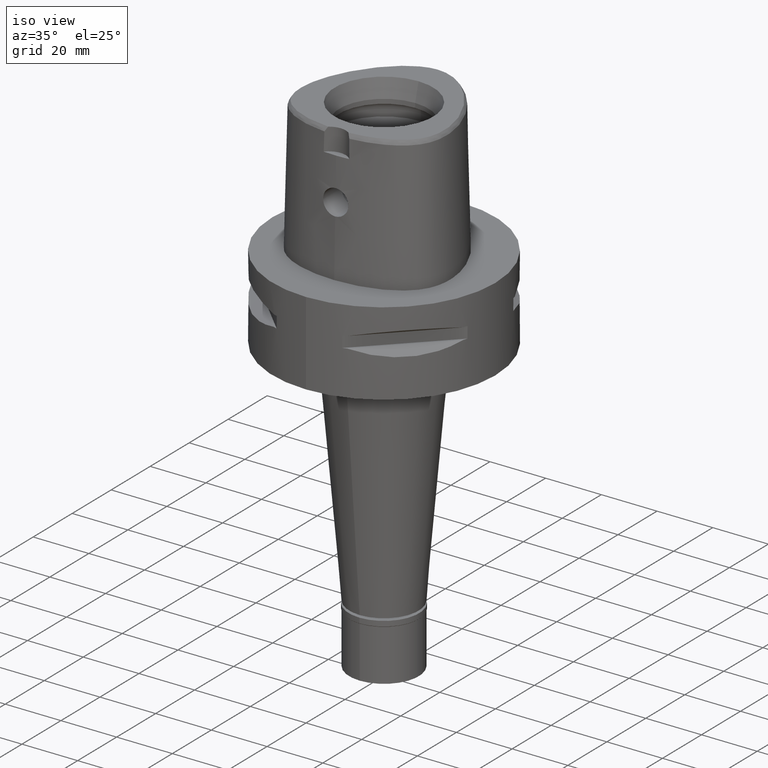
[diagram: clean part render]
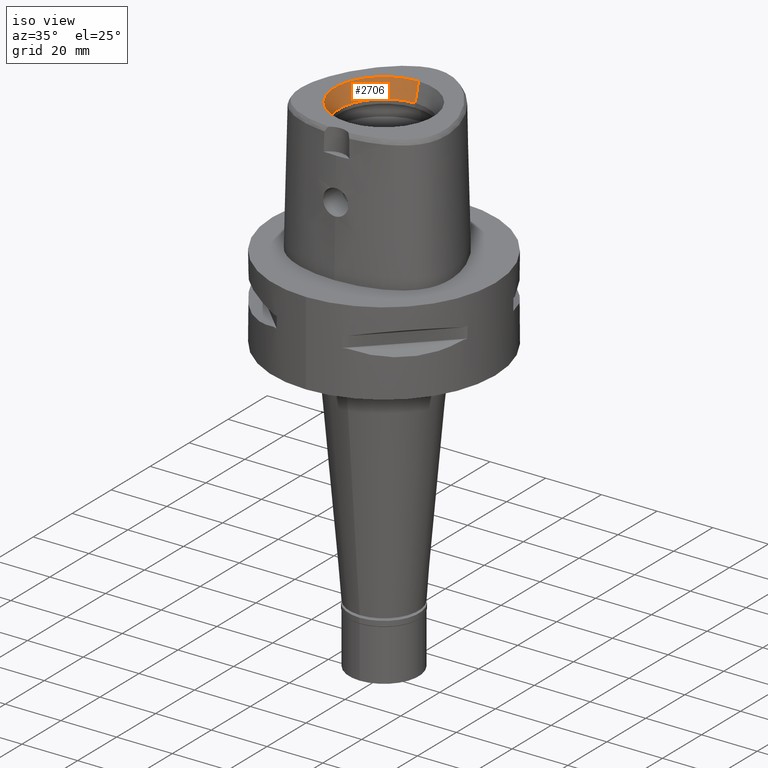
[diagram: same view with one face highlighted and labeled with its STEP entity id]
A machine part, iso view. The second image highlights one B-rep face of the part: STEP entity #2706.
In plain terms, the highlighted conical surface has half-angle 15 deg.
Its self-contained STEP definition (entity closure, byte-faithful):
#29 = CARTESIAN_POINT ( 'NONE',  ( 0.0000000000000000000, 16.00000000000000000, 41.60000000000000142 ) ) ;
#66 = CIRCLE ( 'NONE', #4223, 16.00000000000000000 ) ;
#158 = ORIENTED_EDGE ( 'NONE', *, *, #3433, .F. ) ;
#159 = LINE ( 'NONE', #1749, #890 ) ;
#604 = CARTESIAN_POINT ( 'NONE',  ( 0.0000000000000000000, 0.0000000000000000000, 41.60000000000000142 ) ) ;
#634 = DIRECTION ( 'NONE',  ( 0.0000000000000000000, 0.0000000000000000000, 1.000000000000000000 ) ) ;
#740 = FACE_OUTER_BOUND ( 'NONE', #3420, .T. ) ;
#878 = CONICAL_SURFACE ( 'NONE', #4567, 16.85743741578000154, 0.2617993877991000029 ) ;
#890 = VECTOR ( 'NONE', #3347, 1000.000000000000000 ) ;
#1145 = VERTEX_POINT ( 'NONE', #29 ) ;
#1173 = ORIENTED_EDGE ( 'NONE', *, *, #2574, .T. ) ;
#1374 = CARTESIAN_POINT ( 'NONE',  ( 0.0000000000000000000, 16.00000000000000000, 41.60000000000000142 ) ) ;
#1419 = EDGE_CURVE ( 'NONE', #1145, #4368, #2505, .T. ) ;
#1430 = CARTESIAN_POINT ( 'NONE',  ( 0.0000000000000000000, 0.0000000000000000000, 48.00000000000000000 ) ) ;
#1676 = ORIENTED_EDGE ( 'NONE', *, *, #1419, .T. ) ;
#1749 = CARTESIAN_POINT ( 'NONE',  ( 0.0000000000000000000, -16.00000000000000000, 41.60000000000000142 ) ) ;
#2041 = CARTESIAN_POINT ( 'NONE',  ( 0.0000000000000000000, 17.71487483155999954, 48.00000000000000000 ) ) ;
#2061 = CARTESIAN_POINT ( 'NONE',  ( 0.0000000000000000000, -16.00000000000000000, 41.60000000000000142 ) ) ;
#2286 = DIRECTION ( 'NONE',  ( 0.0000000000000000000, 1.000000000000000000, 0.0000000000000000000 ) ) ;
#2384 = VERTEX_POINT ( 'NONE', #2061 ) ;
#2421 = EDGE_CURVE ( 'NONE', #1145, #2384, #66, .T. ) ;
#2505 = LINE ( 'NONE', #1374, #3318 ) ;
#2542 = VERTEX_POINT ( 'NONE', #4645 ) ;
#2574 = EDGE_CURVE ( 'NONE', #4368, #2542, #2639, .T. ) ;
#2639 = CIRCLE ( 'NONE', #3982, 17.71487483155999954 ) ;
#2706 = ADVANCED_FACE ( 'NONE', ( #740 ), #878, .F. ) ;
#3318 = VECTOR ( 'NONE', #4170, 1000.000000000000000 ) ;
#3347 = DIRECTION ( 'NONE',  ( 0.0000000000000000000, -0.2588190451025869088, 0.9659258262890505486 ) ) ;
#3416 = DIRECTION ( 'NONE',  ( 0.0000000000000000000, 0.0000000000000000000, 1.000000000000000000 ) ) ;
#3420 = EDGE_LOOP ( 'NONE', ( #158, #4189, #1676, #1173 ) ) ;
#3433 = EDGE_CURVE ( 'NONE', #2384, #2542, #159, .T. ) ;
#3982 = AXIS2_PLACEMENT_3D ( 'NONE', #1430, #634, #4596 ) ;
#4170 = DIRECTION ( 'NONE',  ( 0.0000000000000000000, 0.2588190451025869088, 0.9659258262890505486 ) ) ;
#4189 = ORIENTED_EDGE ( 'NONE', *, *, #2421, .F. ) ;
#4223 = AXIS2_PLACEMENT_3D ( 'NONE', #604, #3416, #2286 ) ;
#4320 = DIRECTION ( 'NONE',  ( 0.0000000000000000000, 0.0000000000000000000, 1.000000000000000000 ) ) ;
#4368 = VERTEX_POINT ( 'NONE', #2041 ) ;
#4567 = AXIS2_PLACEMENT_3D ( 'NONE', #4778, #4320, #4800 ) ;
#4596 = DIRECTION ( 'NONE',  ( 0.0000000000000000000, 1.000000000000000000, 0.0000000000000000000 ) ) ;
#4645 = CARTESIAN_POINT ( 'NONE',  ( 0.0000000000000000000, -17.71487483155999954, 48.00000000000000000 ) ) ;
#4778 = CARTESIAN_POINT ( 'NONE',  ( 0.0000000000000000000, 0.0000000000000000000, 44.79999999999999716 ) ) ;
#4800 = DIRECTION ( 'NONE',  ( 0.0000000000000000000, 1.000000000000000000, 0.0000000000000000000 ) ) ;